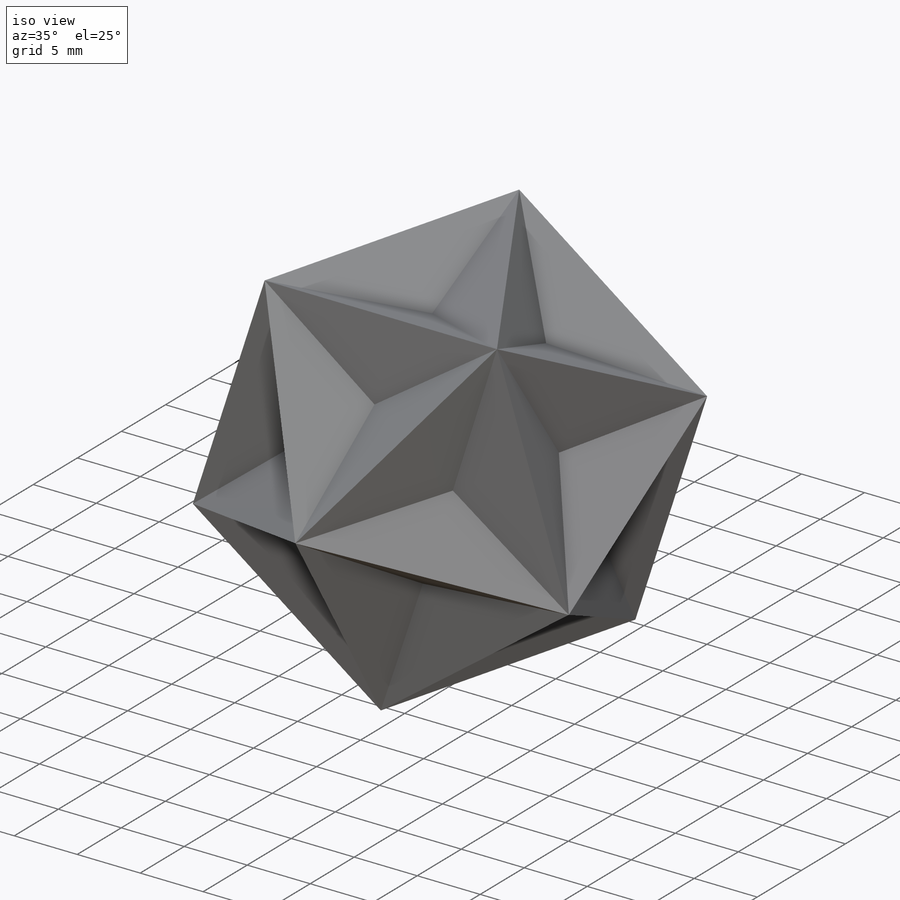
[diagram: iso view]
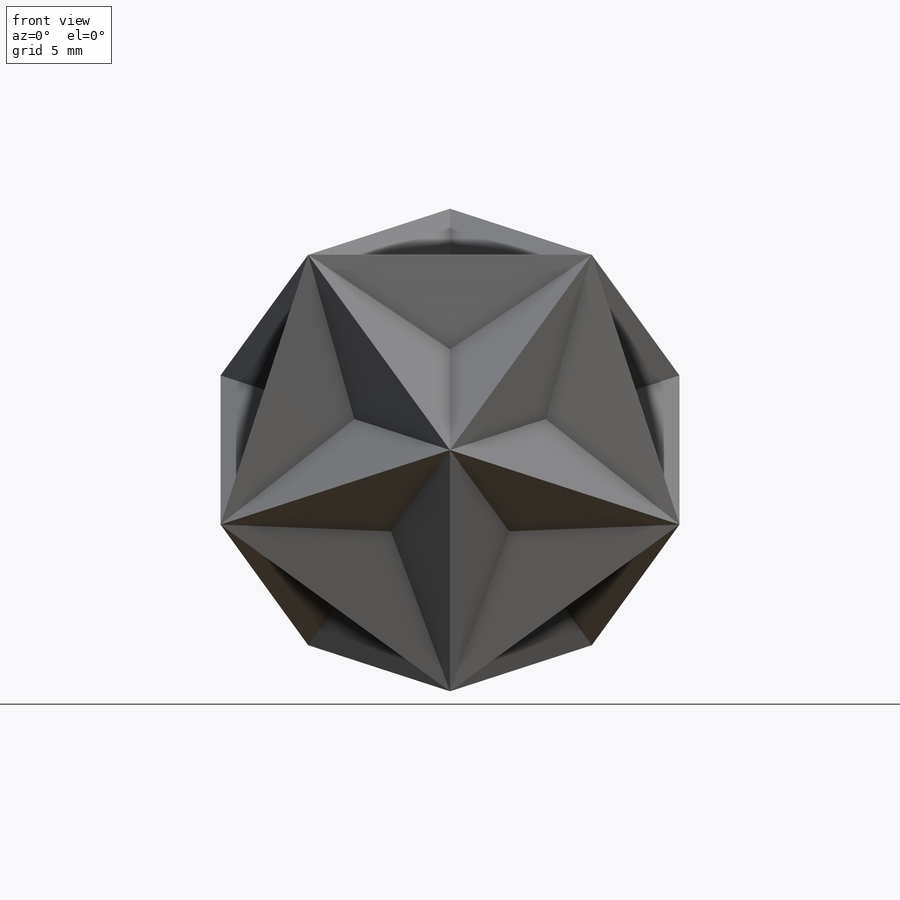
[diagram: front view]
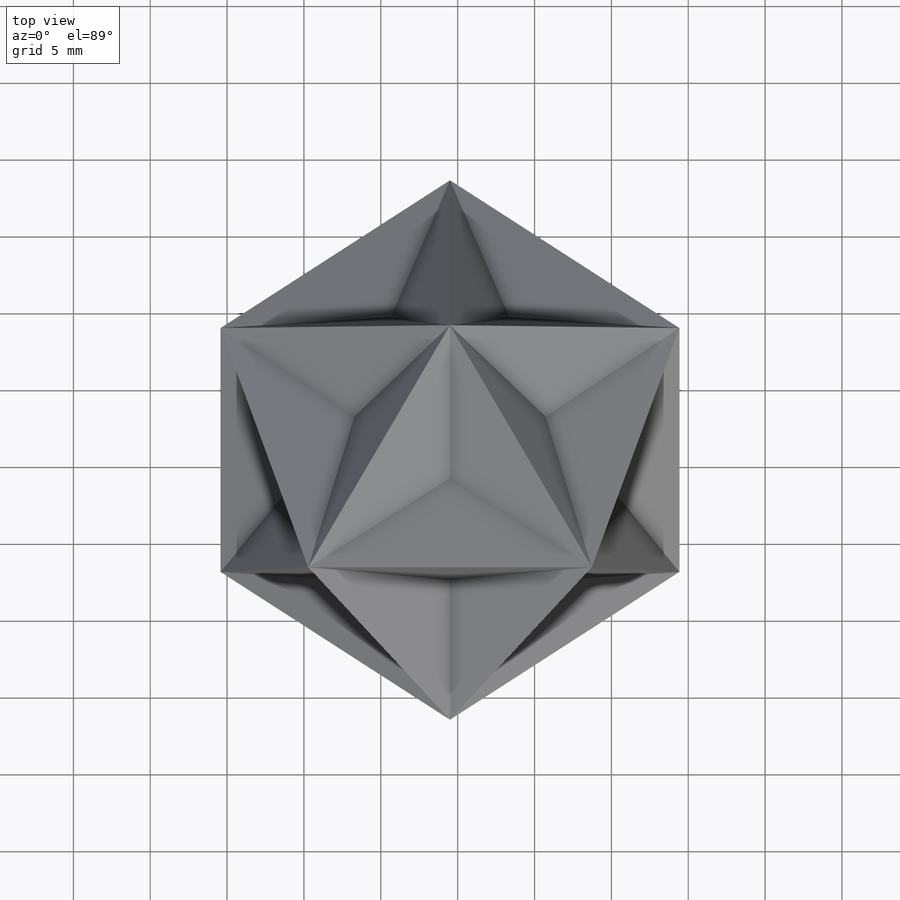
[diagram: top view]
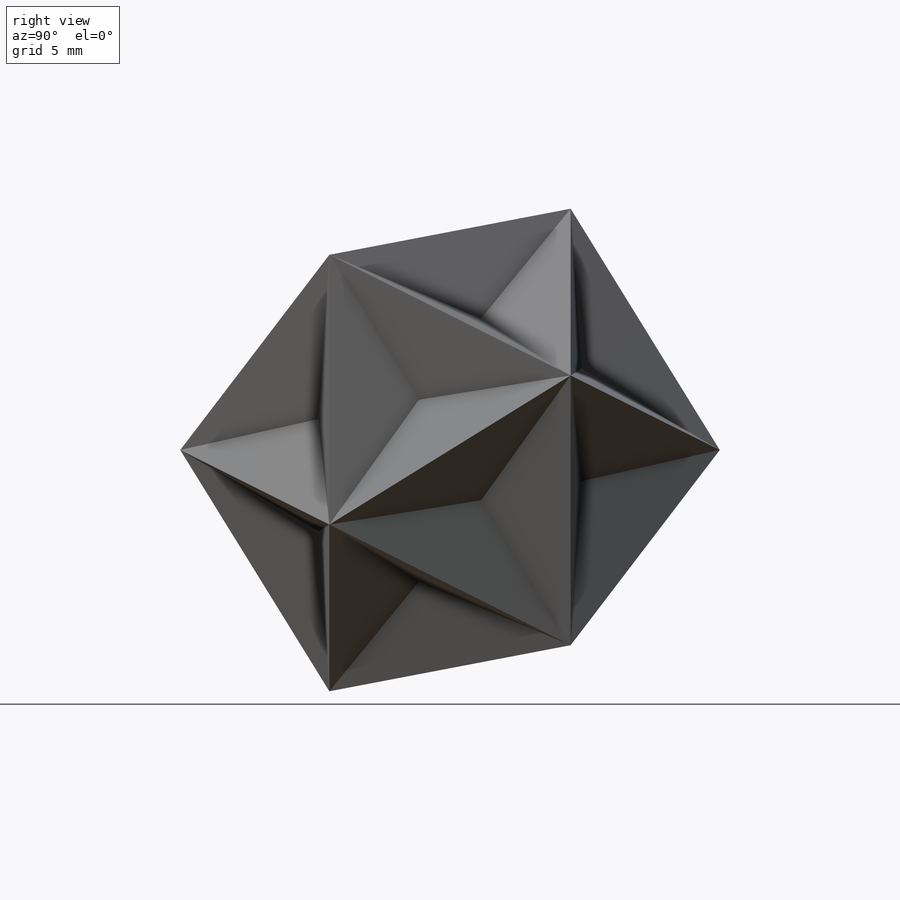
[diagram: right view]
SOLIDWORKS PART (.sldprt)
format: sldprt  version: not decoded by parser v0  size: 329,216 bytes
history: native  units: mm
features: sketch x13, pattern_circular x8, material x1, move_body x1 (+15 scaffold rows collapsed; 3 parser-record rows omitted)
feature tree (41):
  scaffold x15  (default folders/planes/origin — collapsed)
  material  "Material <not specified>"
  sketch  "Sketch2"  dims[D1=25.4mm]
  sketch  "3DSketch3"
  sketch  "Block1-2"
  sketch  "Block1-3"
  sketch  "Block1-4"
  sketch  "Block1-5"
  sketch  "Block1-6"
  sketch  "Block1-8"
  sketch  "Block1-9"
  sketch  "Block1-10"  dims[c1.D1=~18.45418mm c2.D1=~0.711219mm c3.D1=~18.45418mm]
  sketch  "3DSketch4"  dims[c1.D1=~7.124632mm c2.D1=~13.467514mm c3.D1=~12.138196mm c4.D1=~13.146571mm c5.D1=~15.981789mm c6.D1=3.175mm]
  sketch  "3DSketch5"
  sketch  "3DSketch6"
  pattern_circular  "CirPattern1"  Count=5 Angle=360deg
  pattern_circular  "CirPattern2"  Count=5 Angle=72deg
  pattern_circular  "CirPattern3"  Count=5 Angle=360deg
  pattern_circular  "CirPattern4"  Count=5 Angle=360deg
  pattern_circular  "CirPattern5"  Count=5 Angle=360deg
  pattern_circular  "CirPattern6"  Count=5 Angle=360deg
  pattern_circular  "CirPattern7"  Count=5 Angle=360deg
  pattern_circular  "CirPattern8"  Count=5 Angle=360deg
  move_body  "Body-Move/Copy1"
  parser-record x3  (decoder bookkeeping rows leaked as tree rows — omitted from the tree; the rows remain in map.json)
decode coverage: 11 of 22 modeling features carry decoded parameters
note: ~ marks probable driven/reference dimensions
note: suppression state not decoded; provenance and decode notes live in map.json
